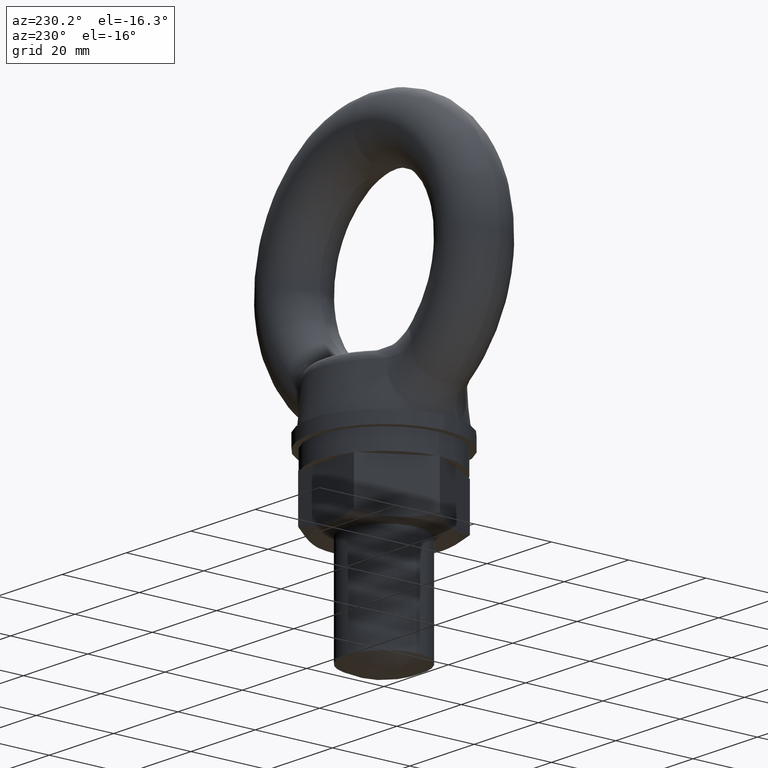
[diagram: clean part render]
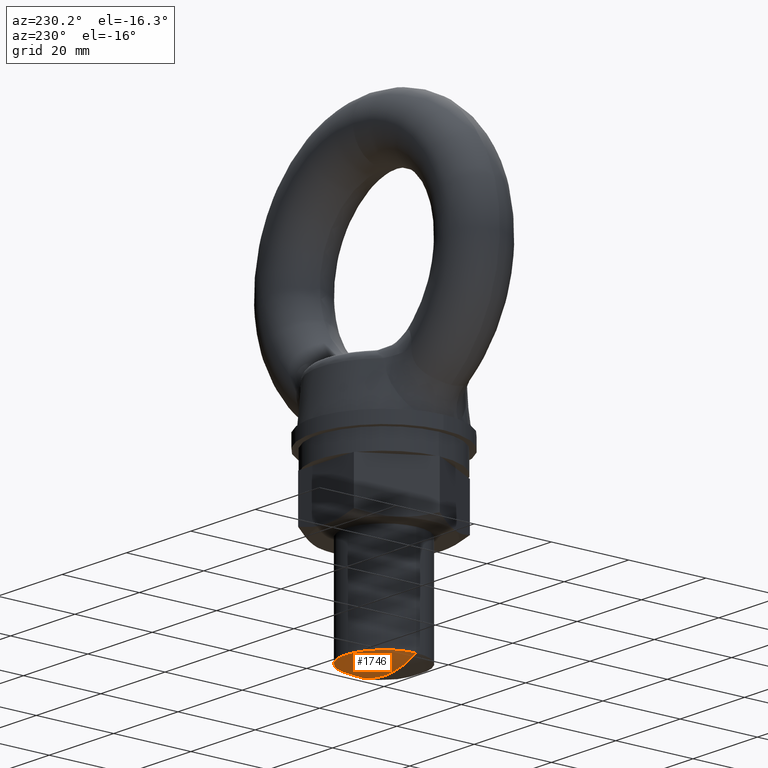
[diagram: same view with one face highlighted and labeled with its STEP entity id]
A machine part, auxiliary view. The second image highlights one B-rep face of the part: STEP entity #1746.
In plain terms, the highlighted spherical surface has radius 21.25 mm.
Its self-contained STEP definition (entity closure, byte-faithful):
#1746 = ADVANCED_FACE ( 'NONE', ( #3361 ), #3363, .T. ) ;
#1948 = EDGE_LOOP ( 'NONE', ( #1949, #1953, #1956 ) ) ;
#1949 = ORIENTED_EDGE ( 'NONE', *, *, #1950, .T. ) ;
#1950 = EDGE_CURVE ( 'NONE', #1951, #1952, #10418, .T. ) ;
#1951 = VERTEX_POINT ( 'NONE', #10414 ) ;
#1952 = VERTEX_POINT ( 'NONE', #10413 ) ;
#1953 = ORIENTED_EDGE ( 'NONE', *, *, #1954, .T. ) ;
#1954 = EDGE_CURVE ( 'NONE', #1952, #1955, #10597, .T. ) ;
#1955 = VERTEX_POINT ( 'NONE', #10592 ) ;
#1956 = ORIENTED_EDGE ( 'NONE', *, *, #1957, .F. ) ;
#1957 = EDGE_CURVE ( 'NONE', #1951, #1955, #10482, .T. ) ;
#3296 = DIRECTION ( 'NONE',  ( -1.000000000000000000, 0.0000000000000000000, 0.0000000000000000000 ) ) ;
#3313 = DIRECTION ( 'NONE',  ( 0.0000000000000000000, 1.000000000000000000, 0.0000000000000000000 ) ) ;
#3314 = CARTESIAN_POINT ( 'NONE',  ( 0.0000000000000000000, 0.0000000000000000000, -63.75000000000000000 ) ) ;
#3315 = AXIS2_PLACEMENT_3D ( 'NONE', #3314, #3313, #3296 ) ;
#3361 = FACE_OUTER_BOUND ( 'NONE', #1948, .T. ) ;
#3363 = SPHERICAL_SURFACE ( 'NONE', #3315, 21.25000000000000000 ) ;
#10413 = CARTESIAN_POINT ( 'NONE',  ( 9.999998711995109700, 0.0000000000000000000, -82.50000068693590500 ) ) ;
#10414 = CARTESIAN_POINT ( 'NONE',  ( -9.999998711995109700, 1.224606274957423500E-015, -82.50000068693590500 ) ) ;
#10415 = DIRECTION ( 'NONE',  ( -1.000000000000000000, 0.0000000000000000000, 0.0000000000000000000 ) ) ;
#10416 = DIRECTION ( 'NONE',  ( 0.0000000000000000000, 0.0000000000000000000, -1.000000000000000000 ) ) ;
#10417 = AXIS2_PLACEMENT_3D ( 'NONE', #10568, #10416, #10415 ) ;
#10418 = CIRCLE ( 'NONE', #10417, 9.999998711995109700 ) ;
#10478 = DIRECTION ( 'NONE',  ( 0.0000000000000000000, 0.0000000000000000000, -1.000000000000000000 ) ) ;
#10479 = DIRECTION ( 'NONE',  ( 0.0000000000000000000, -1.000000000000000000, 0.0000000000000000000 ) ) ;
#10480 = CARTESIAN_POINT ( 'NONE',  ( 0.0000000000000000000, 0.0000000000000000000, -63.75000000000000000 ) ) ;
#10481 = AXIS2_PLACEMENT_3D ( 'NONE', #10480, #10479, #10478 ) ;
#10482 = CIRCLE ( 'NONE', #10481, 21.25000000000000400 ) ;
#10568 = CARTESIAN_POINT ( 'NONE',  ( 0.0000000000000000000, 0.0000000000000000000, -82.50000068693590500 ) ) ;
#10592 = CARTESIAN_POINT ( 'NONE',  ( -1.301144250936276000E-015, 0.0000000000000000000, -85.00000000000000000 ) ) ;
#10593 = DIRECTION ( 'NONE',  ( -1.000000000000000000, -1.224606353822377500E-016, 0.0000000000000000000 ) ) ;
#10594 = DIRECTION ( 'NONE',  ( -1.224606353822377300E-016, 1.000000000000000000, 0.0000000000000000000 ) ) ;
#10595 = CARTESIAN_POINT ( 'NONE',  ( 0.0000000000000000000, 0.0000000000000000000, -63.75000000000000000 ) ) ;
#10596 = AXIS2_PLACEMENT_3D ( 'NONE', #10595, #10594, #10593 ) ;
#10597 = CIRCLE ( 'NONE', #10596, 21.25000000000000000 ) ;